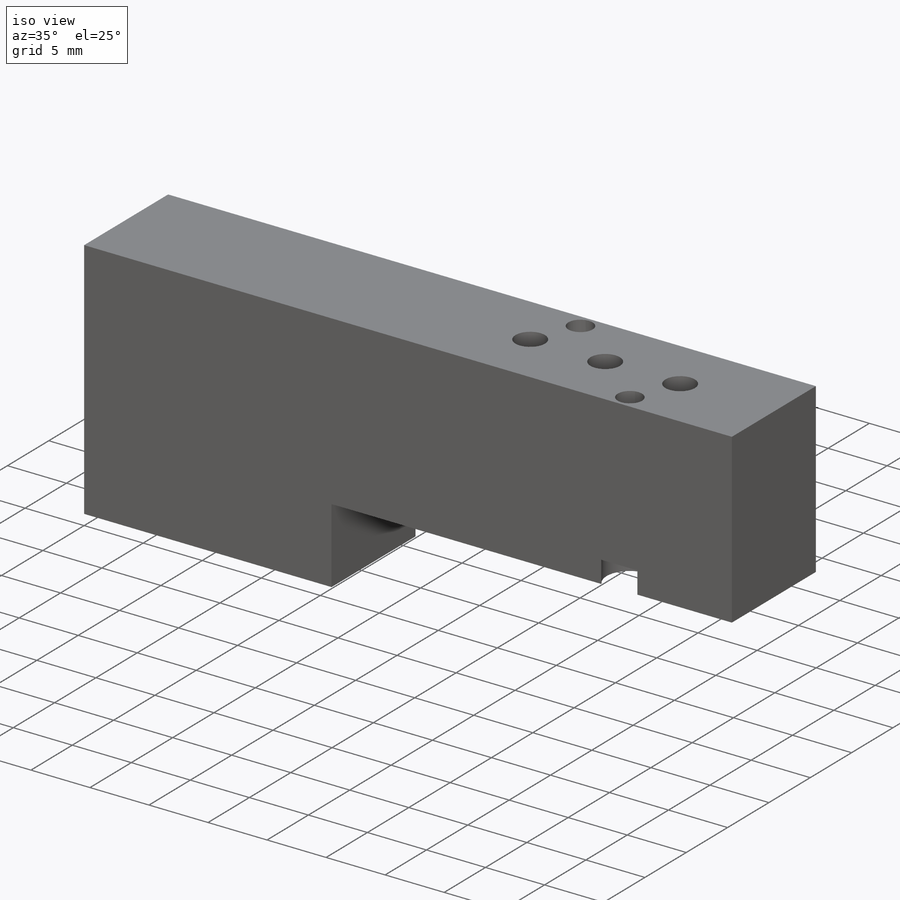
[diagram: iso view]
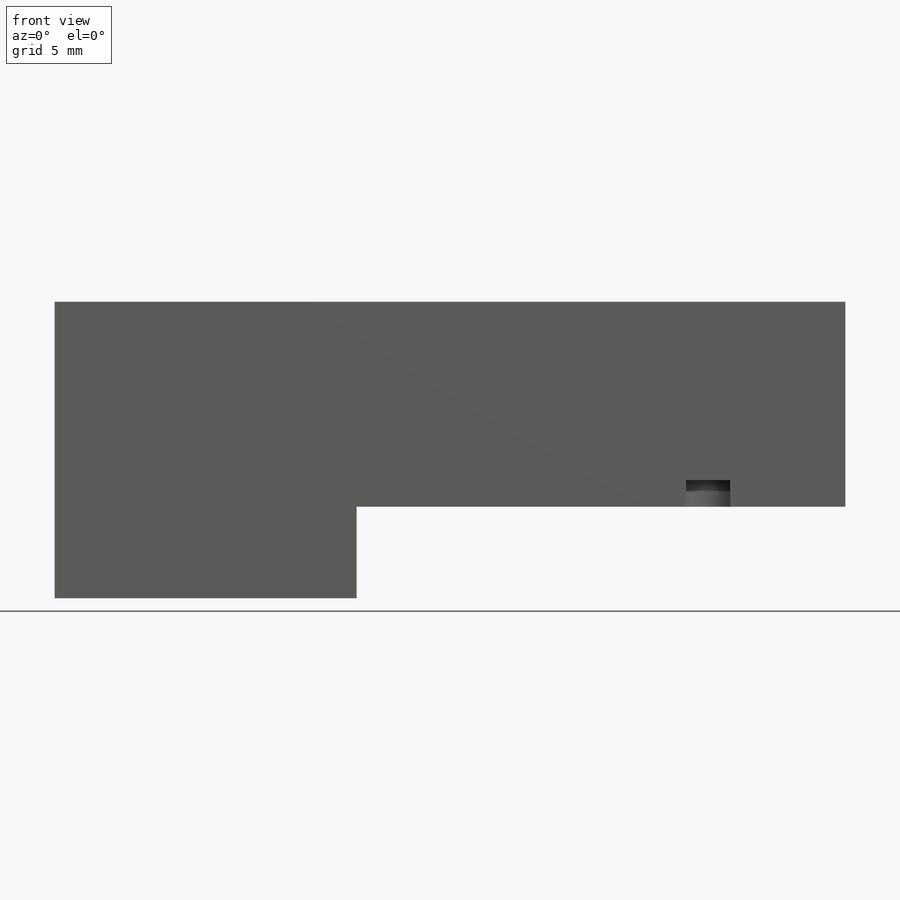
[diagram: front view]
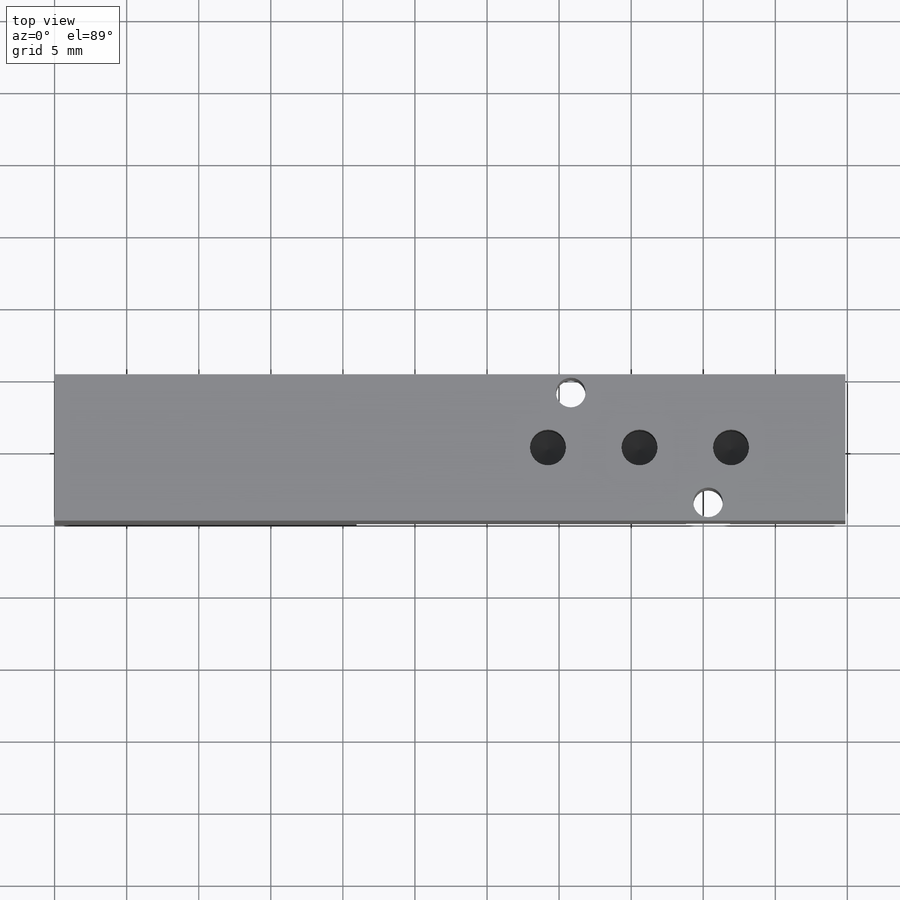
[diagram: top view]
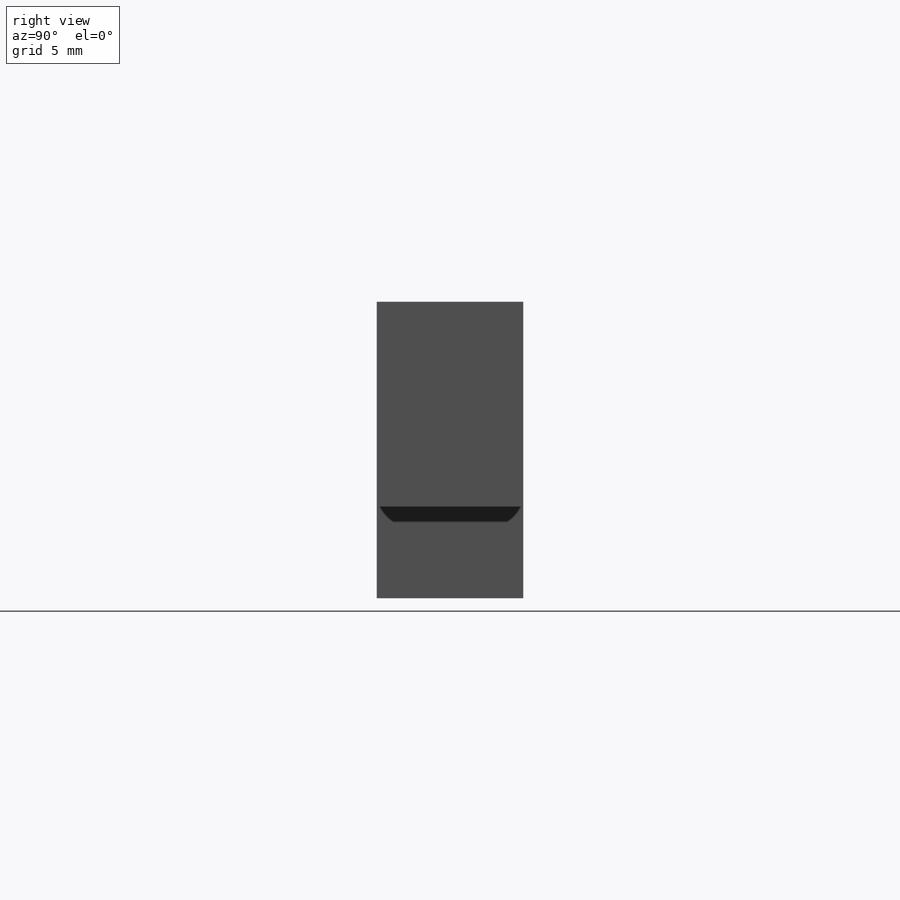
[diagram: right view]
SOLIDWORKS PART (.sldprt)
format: sldprt  version: not decoded by parser v0  size: 521,216 bytes
history: native  units: mm
features: sketch x9, thread x5, hole x3, extrude x2, material x1, cut_extrude x1 (+12 scaffold rows collapsed)
feature tree (33):
  scaffold x12  (default folders/planes/origin — collapsed)
  material  "6061 Alloy"
  sketch  "Sketch1"  dims[D1=54.864mm D2=14.224mm]
  extrude  "Base-Extrude"  Depth=10.16mm
  sketch  "Sketch2"  dims[D1=20.955mm]
  extrude  "Boss-Extrude1"  Depth=6.35mm
  hole  "M3x0.5 Tapped Hole1"  Diameter=2.5mm Depth=7.499985mm
  sketch  "Sketch4"  dims[D1=7.9375mm D2=6.35mm D3=6.35mm D4=5.08mm D5=5.08mm D6=5.08mm]
  sketch  "Sketch3"  dims[hole-wizard template sketch: 47 standard entries collapsed; hole parameters kept: c15.Hole Depth=~7.499985mm c15.D3=~14.816244mm c15.Drill Angle=118.0deg]
  thread  "Cosmetic Thread1"  Diameter=5.999988mm  [1 undecoded]
  thread  "Cosmetic Thread2"  Diameter=5.999988mm  [1 undecoded]
  thread  "Cosmetic Thread3"  Diameter=5.999988mm  [1 undecoded]
  hole  "CBORE for #1 Socket Head Cap Screw1"  Diameter=2.0574mm Depth=22.86mm
  sketch  "Sketch8"  dims[D1=1.27mm D2=1.27mm D3=9.525mm D4=19.05mm]
  sketch  "Sketch7"  dims[hole-wizard template sketch: 28 standard entries collapsed; hole parameters kept: c8.Hole Dia.=2.0574mm c8.Hole Depth=22.86mm c8.C'Bore Dia.=~3.97002mm c8.C'Bore Depth=1.8542mm c8.D5=~14.816244mm c8.Drill Angle=118.0deg]
  hole  "M3x0.5 Tapped Hole2"  [1 undecoded]
  sketch  "Sketch10"  dims[D1=3.175mm D2=3.175mm D3=11.0998mm D4=17.4498mm]
  thread  "Cosmetic Thread4"  Diameter=5.999988mm  [1 undecoded]
  thread  "Cosmetic Thread5"  Diameter=5.999988mm  [1 undecoded]
  sketch  "Sketch9"  dims[hole-wizard template sketch: 47 standard entries collapsed; hole parameters kept: c15.Hole Depth=~7.50001mm c15.D3=~14.816244mm c15.Drill Angle=118.0deg]
  sketch  "Sketch11"  dims[D1=3.175mm D2=3.175mm D3=2.286mm D4=2.286mm D5=7.9375mm D6=6.35mm]
  cut_extrude  "Cut-Extrude1"  [1 undecoded]
decode coverage: 18 of 20 modeling features carry decoded parameters
note: ~ marks probable driven/reference dimensions
note: 7 parameter values undecoded
note: suppression state not decoded; provenance and decode notes live in map.json
